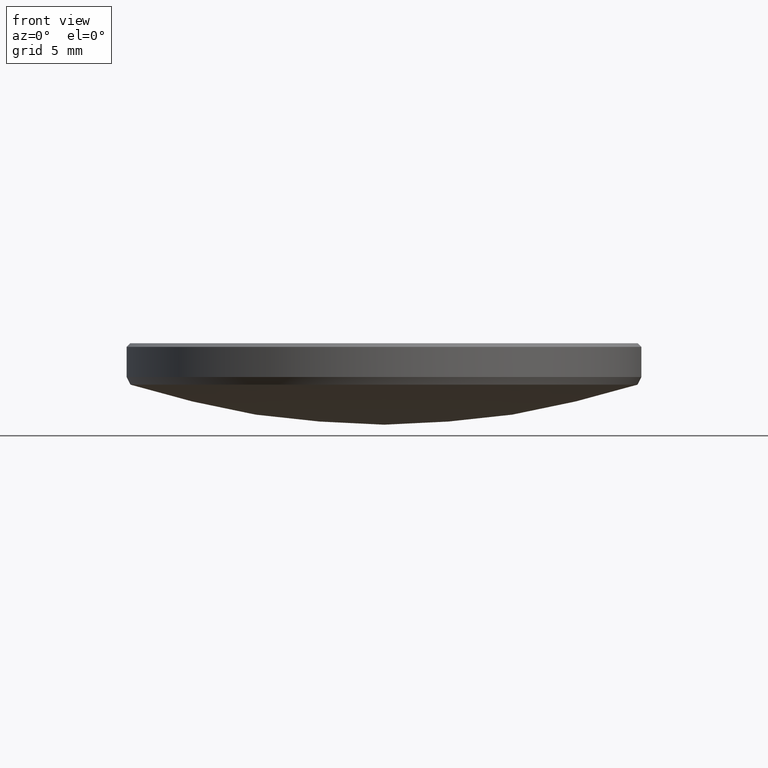
[diagram: clean part render]
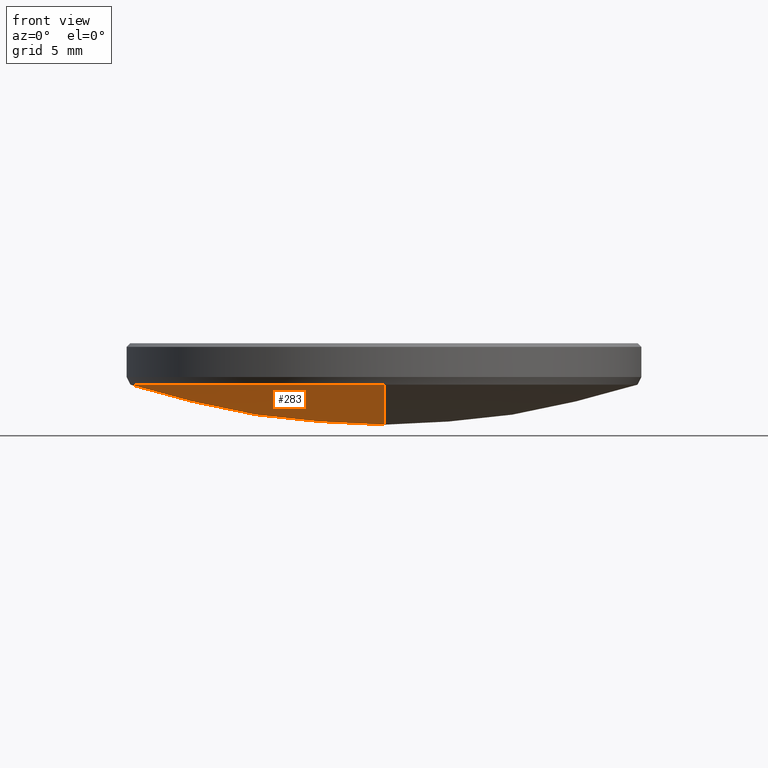
[diagram: same view with one face highlighted and labeled with its STEP entity id]
A machine part, front view. The second image highlights one B-rep face of the part: STEP entity #283.
In plain terms, the highlighted spherical surface has radius 40.6 mm.
Its self-contained STEP definition (entity closure, byte-faithful):
#5 = CIRCLE ( 'NONE', #101, 40.59999999999999432 ) ;
#13 = AXIS2_PLACEMENT_3D ( 'NONE', #202, #284, #257 ) ;
#22 = CARTESIAN_POINT ( 'NONE',  ( -12.51034897911231170, 1.543688659132881617E-15, 3.938057364562333351 ) ) ;
#35 = CARTESIAN_POINT ( 'NONE',  ( 0.000000000000000000, 0.000000000000000000, 42.56254659640620730 ) ) ;
#37 = FACE_OUTER_BOUND ( 'NONE', #240, .T. ) ;
#43 = VERTEX_POINT ( 'NONE', #22 ) ;
#60 = CARTESIAN_POINT ( 'NONE',  ( 0.000000000000000000, 0.000000000000000000, 42.56254659640620730 ) ) ;
#61 = ORIENTED_EDGE ( 'NONE', *, *, #232, .T. ) ;
#62 = DIRECTION ( 'NONE',  ( -1.000000000000000000, 0.000000000000000000, 0.000000000000000000 ) ) ;
#70 = AXIS2_PLACEMENT_3D ( 'NONE', #35, #180, #280 ) ;
#75 = DIRECTION ( 'NONE',  ( 0.000000000000000000, 0.000000000000000000, -1.000000000000000000 ) ) ;
#84 = AXIS2_PLACEMENT_3D ( 'NONE', #60, #62, #164 ) ;
#91 = ORIENTED_EDGE ( 'NONE', *, *, #146, .T. ) ;
#96 = EDGE_CURVE ( 'NONE', #187, #302, #5, .T. ) ;
#101 = AXIS2_PLACEMENT_3D ( 'NONE', #128, #224, #75 ) ;
#106 = DIRECTION ( 'NONE',  ( 0.000000000000000000, 0.000000000000000000, -1.000000000000000000 ) ) ;
#108 = CARTESIAN_POINT ( 'NONE',  ( 0.000000000000000000, 0.000000000000000000, 3.938057364562333351 ) ) ;
#128 = CARTESIAN_POINT ( 'NONE',  ( 0.000000000000000000, 0.000000000000000000, 42.56254659640620730 ) ) ;
#133 = CARTESIAN_POINT ( 'NONE',  ( 0.000000000000000000, 2.486033002269126979E-15, 1.962546596406211652 ) ) ;
#139 = ORIENTED_EDGE ( 'NONE', *, *, #225, .T. ) ;
#146 = EDGE_CURVE ( 'NONE', #43, #302, #231, .T. ) ;
#164 = DIRECTION ( 'NONE',  ( 0.000000000000000000, 1.000000000000000000, 0.000000000000000000 ) ) ;
#180 = DIRECTION ( 'NONE',  ( -1.000000000000000000, 1.224646799147353207E-16, 0.000000000000000000 ) ) ;
#184 = DIRECTION ( 'NONE',  ( 1.000000000000000000, 0.000000000000000000, 0.000000000000000000 ) ) ;
#187 = VERTEX_POINT ( 'NONE', #133 ) ;
#202 = CARTESIAN_POINT ( 'NONE',  ( 0.000000000000000000, 0.000000000000000000, 3.938057364562333351 ) ) ;
#207 = CIRCLE ( 'NONE', #13, 12.51034897911231170 ) ;
#217 = VERTEX_POINT ( 'NONE', #233 ) ;
#220 = CIRCLE ( 'NONE', #70, 40.59999999999999432 ) ;
#224 = DIRECTION ( 'NONE',  ( 1.000000000000000000, -0.000000000000000000, 0.000000000000000000 ) ) ;
#225 = EDGE_CURVE ( 'NONE', #187, #217, #220, .T. ) ;
#231 = CIRCLE ( 'NONE', #279, 12.51034897911231170 ) ;
#232 = EDGE_CURVE ( 'NONE', #217, #43, #207, .T. ) ;
#233 = CARTESIAN_POINT ( 'NONE',  ( -1.532075883348624801E-15, -12.51034897911230992, 3.938057364562333351 ) ) ;
#239 = ORIENTED_EDGE ( 'NONE', *, *, #96, .F. ) ;
#240 = EDGE_LOOP ( 'NONE', ( #239, #139, #61, #91 ) ) ;
#257 = DIRECTION ( 'NONE',  ( 1.000000000000000000, 0.000000000000000000, 0.000000000000000000 ) ) ;
#263 = CARTESIAN_POINT ( 'NONE',  ( 0.000000000000000000, 12.51034897911230992, 3.938057364562333351 ) ) ;
#279 = AXIS2_PLACEMENT_3D ( 'NONE', #108, #106, #184 ) ;
#280 = DIRECTION ( 'NONE',  ( -1.224646799147353454E-16, -1.000000000000000000, 0.000000000000000000 ) ) ;
#283 = ADVANCED_FACE ( 'NONE', ( #37 ), #315, .T. ) ;
#284 = DIRECTION ( 'NONE',  ( 0.000000000000000000, 0.000000000000000000, -1.000000000000000000 ) ) ;
#302 = VERTEX_POINT ( 'NONE', #263 ) ;
#315 = SPHERICAL_SURFACE ( 'NONE', #84, 40.59999999999999432 ) ;